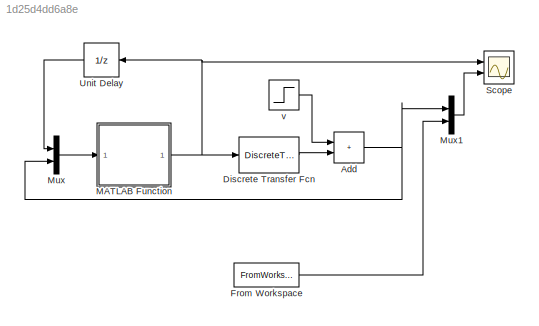
MODEL slx_1d25d4dd6a8e
KIND model
CONFIG AbsTol = auto
CONFIG EnableMultiTasking = off
CONFIG FixedStep = auto
CONFIG MaxStep = auto
CONFIG MinStep = auto
CONFIG RelTol = 1e-3
CONFIG SampleTimeConstraint = Unconstrained
CONFIG SolverName = VariableStepAuto
CONFIG StartTime = 0.0
CONFIG StopTime = 10.0
BLOCK [Sum] Add
  IconShape = rectangular
  Ports = [2, 1]
BLOCK [DiscreteTransferFcn] Discrete Transfer Fcn
  InputPortMap = u0
  Ports = [1, 1]
BLOCK [FromWorkspace] From Workspace
  VariableName = simin
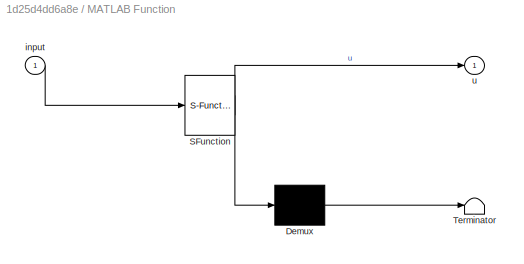
BLOCK [SubSystem] MATLAB Function
  ErrorFcn = Stateflow.Translate.translate
  PermitHierarchicalResolution = ExplicitOnly
  Ports = [1, 1]
  RequestExecContextInheritance = off
  SFBlockType = MATLAB Function
  TreatAsAtomicUnit = on
BLOCK [Demux] MATLAB Function/ Demux 
  Outputs = 1
  Ports = [1, 1]
BLOCK [S-Function] MATLAB Function/ SFunction 
  EnableBusSupport = on
  FunctionName = sf_sfun
  Parameters = Orizont,P,PSI,Q,R,lambda,nA,nB
  PortCounts = [1 2]
  Ports = [1, 2]
  SFcnIsStateOwnerBlock = off
  SFunctionDeploymentMode = off
  Tag = Stateflow S-Function 2
BLOCK [Terminator] MATLAB Function/ Terminator 
BLOCK [Inport] MATLAB Function/input
BLOCK [Outport] MATLAB Function/u
BLOCK [Mux] Mux
  DisplayOption = bar
  Inputs = 2
  Ports = [2, 1]
BLOCK [Mux] Mux1
  DisplayOption = bar
  Inputs = 2
  Ports = [2, 1]
BLOCK [Scope] Scope
  Floating = off
  NumInputPorts = 2
  Ports = [2]
  ScopeSpecificationString = Simulink.scopes.TimeScopeBlockCfg('CurrentConfiguration', extmgr.ConfigurationSet(extmgr.Configuration('Core','General UI',true),extmgr.Configuration('Core','Source UI',true),extmgr.Configuration('Sources','WiredSimulink',true),extmgr.Configuration('Visuals','Time Domain',true),extmgr.Configuration('Tools','Plot Navigation',true),extmgr.Configuration('Tools','Measurements',true,'Version','2020b'))...<+19ch>
BLOCK [UnitDelay] Unit Delay
  HasFrameUpgradeWarning = on
  NameLocation = top
  SampleTime = -1
BLOCK [Step] v
  SampleTime = 0
NET Add:1 -> Mux1:1, Mux:2
LINE Discrete Transfer Fcn:1 -> Add:2
LINE From Workspace:1 -> Mux1:2
NET MATLAB Function:1 -> Discrete Transfer Fcn:1, Scope:1, Unit Delay:1
LINE Mux1:1 -> Scope:2
LINE Mux:1 -> MATLAB Function:1
LINE Unit Delay:1 -> Mux:1
LINE v:1 -> Add:1
note: NET lines group one-source signal fan-out (src -> all destinations, sorted); 1:1 wires keep LINE
CHART MATLAB Function states=1 transitions=1
  STATE_LABEL 'eML_blk_kernel()'
  STATE_LABEL "SCRIPT:\n% ------------------myMPC.m----------------------- %\nfunction u = myMPC(input, R, P, Q, PSI, nA, nB, lambda, Orizont)\n% to clear persistent vars in Fcn, call >>clear 'FcnName' in prompt\n% clear myMPC\npersistent yPast uPast k\nif isempty(yPast) % initializari variabile persistente la prima rulare\nyPast = zeros(2,1);\nuPast = zeros(1,1);\nk = 0;\nend\n% actualizare uPast\nfor i = length(uPast):-1:...<+433ch>"
CHART  states=0 transitions=0
